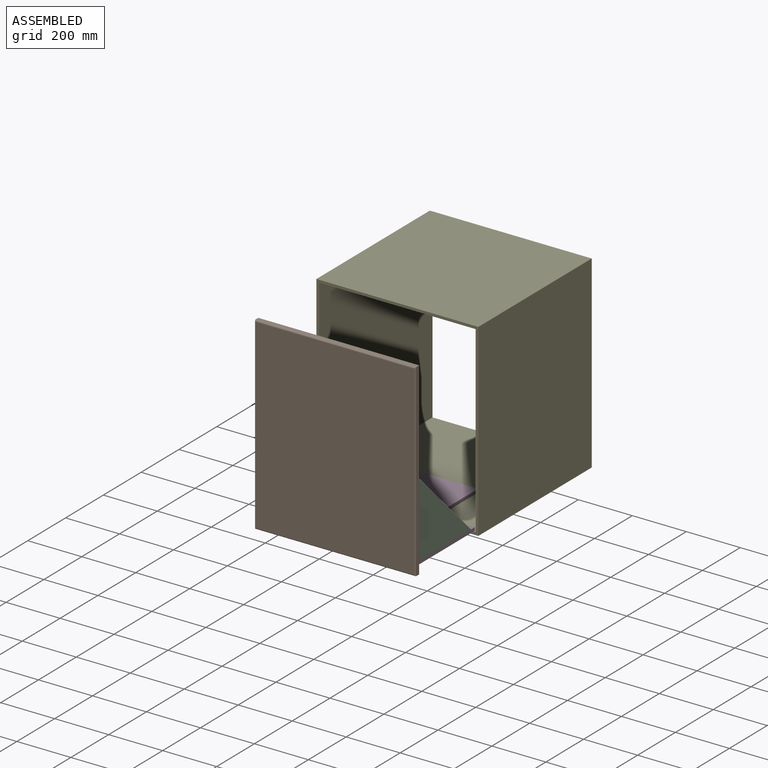
[diagram: assembled view]
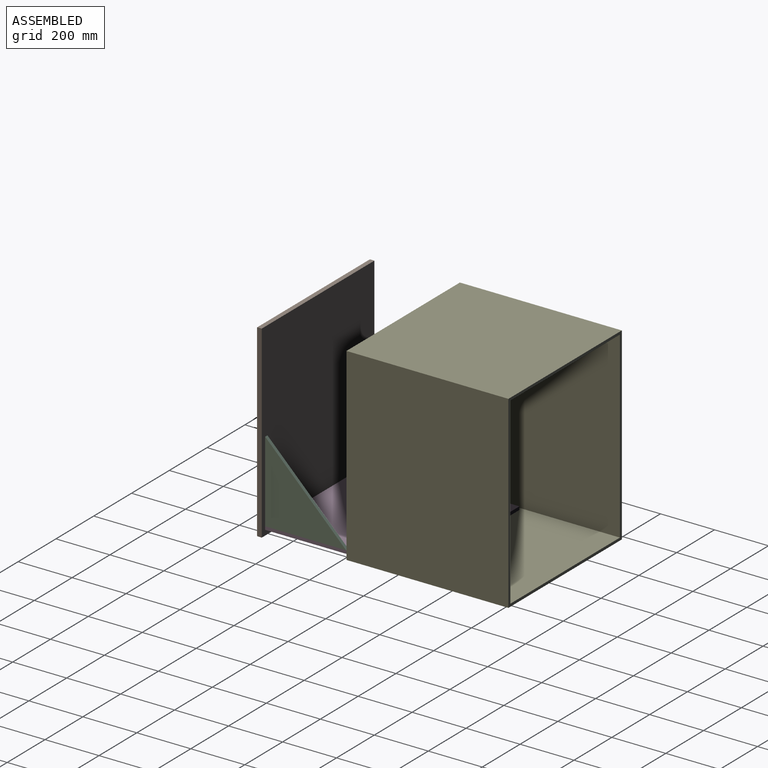
[diagram: assembled view, second angle]
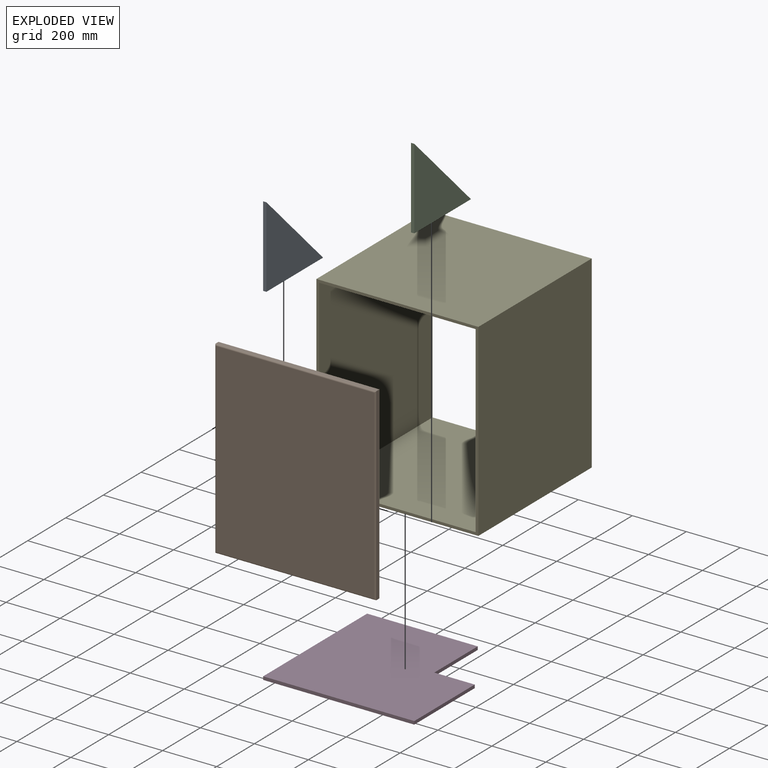
[diagram: exploded view]
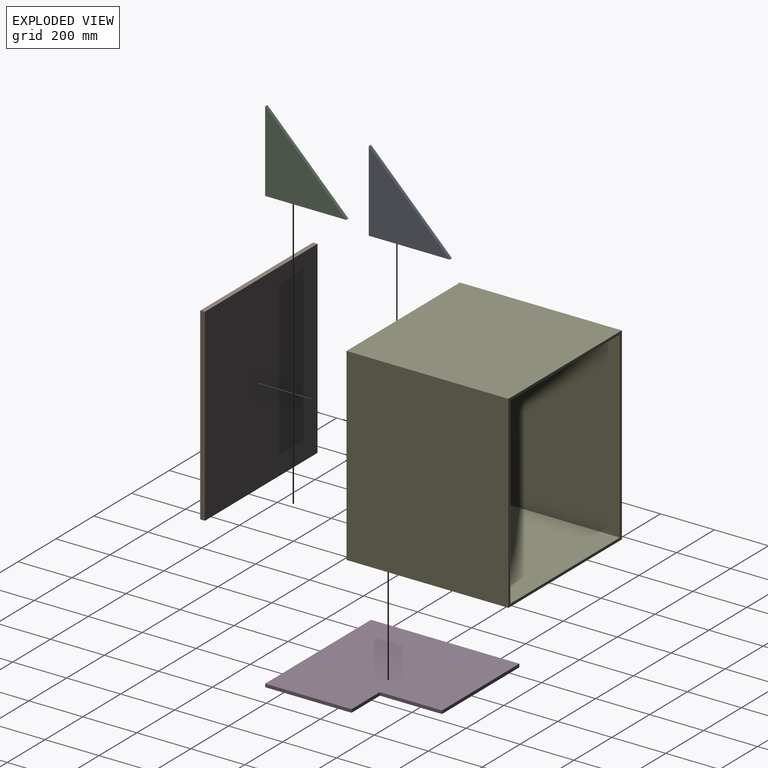
[diagram: exploded view, second angle]
ASSEMBLY  parts=5 mates=4
PART A: 5 faces, bbox 12x300x300 mm
  f0: plane 300x12mm, normal (0,0,-1), area 3600mm2, adj f1,f2,f3,f4
  f1: plane 300x300mm, normal (0,0.71,0.71), area 5091.2mm2, adj f0,f2,f3,f4
  f2: plane 300x12mm, normal (0,-1,0), area 3600mm2, adj f0,f1,f3,f4
  f3: plane 300x300mm, normal (1,0,0), area 45000mm2, adj f0,f1,f2
  f4: plane 300x300mm, normal (-1,0,0), area 45000mm2, adj f0,f1,f2
PART B: 10 faces, bbox 596x20x700 mm
  f0: plane 596x15mm, normal (0,0,1), area 8940mm2, adj f1,f3,f5,f6
  f1: plane 700x15mm, normal (-1,0,0), area 10500mm2, adj f0,f2,f5,f7
  f2: plane 596x15mm, normal (0,0,-1), area 8940mm2, adj f1,f3,f5,f9
  f3: plane 700x15mm, normal (1,0,0), area 10500mm2, adj f0,f2,f5,f8
  f4: plane 690x586mm, normal (0,-1,0), area 404340mm2, adj f6,f7,f8,f9
  f5: plane 700x596mm, normal (0,1,0), area 417200mm2, adj f0,f1,f2,f3
  f6: cylinder r=5mm len=596mm, axis (1,0,0), area 4652.4mm2, adj f0,f4,f7,f8
  f7: cylinder r=5mm len=700mm, axis (0,0,1), area 5469.2mm2, adj f1,f4,f6,f9
  f8: cylinder r=5mm len=700mm, axis (0,0,-1), area 5469.2mm2, adj f3,f4,f6,f9
  f9: cylinder r=5mm len=596mm, axis (-1,0,0), area 4652.4mm2, adj f2,f4,f7,f8
PART C: same geometry as A
PART D: 8 faces, bbox 560x550x12 mm
  f0: plane 410x12mm, normal (0,1,0), area 4920mm2, adj f1,f5,f6,f7
  f1: plane 550x12mm, normal (-1,0,0), area 6600mm2, adj f0,f2,f6,f7
  f2: plane 560x12mm, normal (0,-1,0), area 6720mm2, adj f1,f3,f6,f7
  f3: plane 320x12mm, normal (1,0,0), area 3840mm2, adj f2,f4,f6,f7
  f4: plane 150x12mm, normal (0,1,0), area 1800mm2, adj f3,f5,f6,f7
  f5: plane 230x12mm, normal (1,0,0), area 2760mm2, adj f0,f4,f6,f7
  f6: plane 560x550mm, normal (0,0,1), area 273500mm2, adj f0,f1,f2,f3,f4,f5
  f7: plane 560x550mm, normal (0,0,-1), area 273500mm2, adj f0,f1,f2,f3,f4,f5
PART E: 10 faces, bbox 600x600x700 mm
  f0: plane 600x600mm, normal (0,0,1), area 360000mm2, adj f1,f7,f8,f9
  f1: plane 700x600mm, normal (-1,0,0), area 420000mm2, adj f0,f2,f8,f9
  f2: plane 600x600mm, normal (0,0,-1), area 360000mm2, adj f1,f7,f8,f9
  f3: plane 680x600mm, normal (1,0,0), area 408000mm2, adj f4,f6,f8,f9
  f4: plane 600x580mm, normal (0,0,-1), area 348000mm2, adj f3,f5,f8,f9
  f5: plane 680x600mm, normal (-1,0,0), area 408000mm2, adj f4,f6,f8,f9
  f6: plane 600x580mm, normal (0,0,1), area 348000mm2, adj f3,f5,f8,f9
  f7: plane 700x600mm, normal (1,0,0), area 420000mm2, adj f0,f2,f8,f9
  f8: plane 700x600mm, normal (0,1,0), area 25600mm2, adj f0,f1,f2,f3,f4,f5,f6,f7
  f9: plane 700x600mm, normal (0,-1,0), area 25600mm2, adj f0,f1,f2,f3,f4,f5,f6,f7
PLACE A t=(-216.74,-443.96,89.97)mm
PLACE B t=(80.61,-443.96,496.86)mm
PLACE C t=(331.26,-443.96,89.97)mm
PLACE D t=(-216.74,-443.96,77.97)mm
PLACE E rot(axis=(0.37,0.56,0.74),0deg) t=(-143.46,-130.19,168.31)mm
MATE fastened A.f2 <-> D.f2  axis (0,-1,0) through (-216.74,-443.96,89.97)mm
MATE fastened B.f5 <-> D.f2  axis (0,1,0) through (63.26,-443.96,408.97)mm
MATE planar E.f6 <-> D.f7  axis (0,0,1) through (60.98,169.81,77.97)mm
MATE fastened C.f0 <-> D.f6  axis (0,0,1) through (343.26,-443.96,89.97)mm
